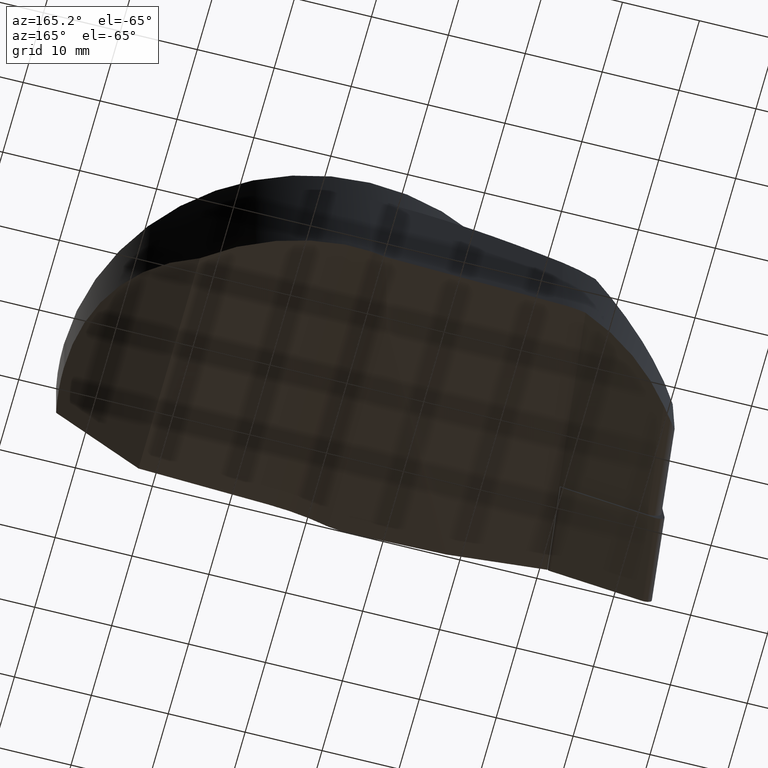
[diagram: clean part render]
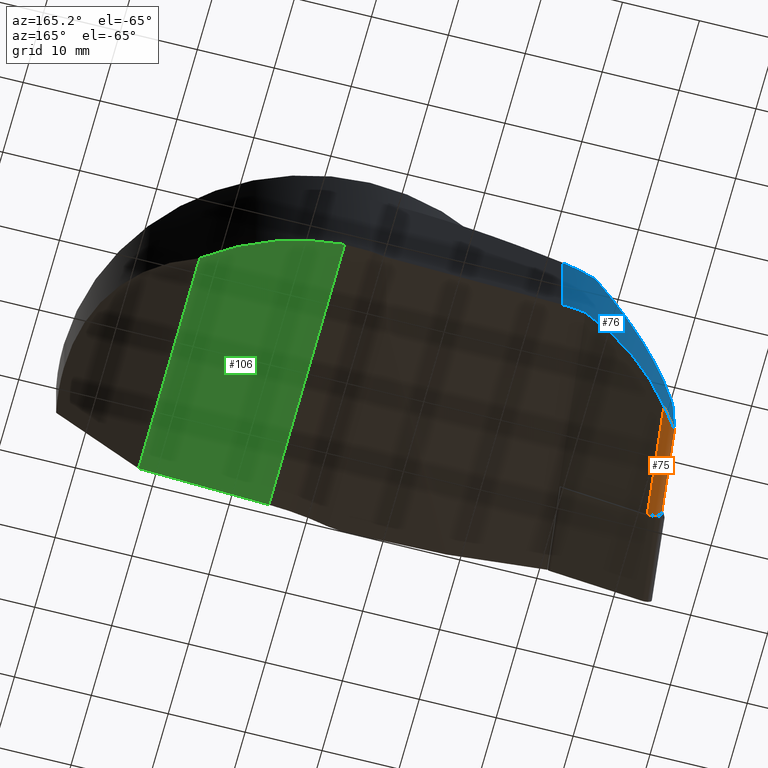
[diagram: same view with three faces highlighted in distinct colors, each labeled with its STEP entity id]
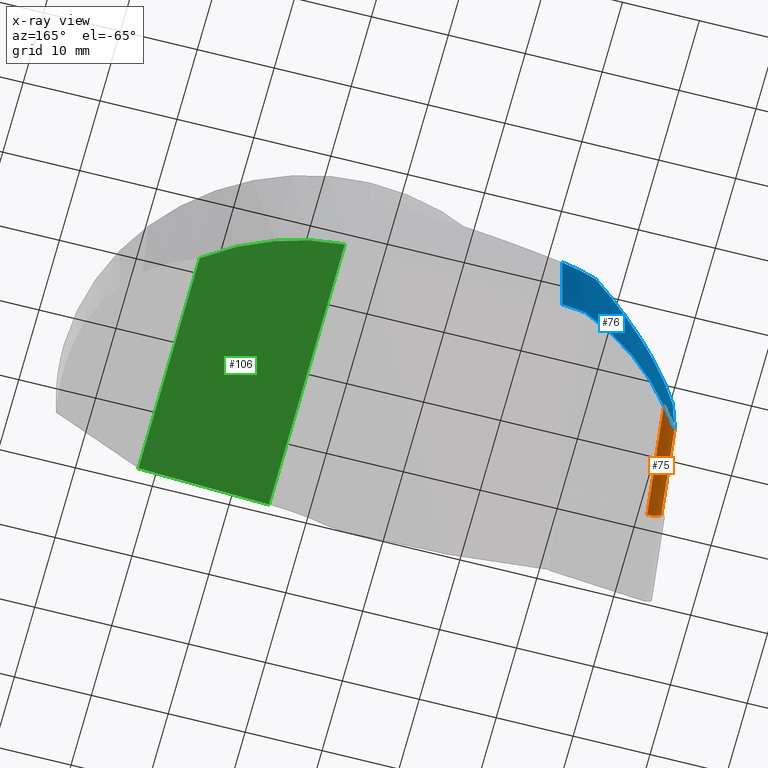
[diagram: x-ray of the same camera — body ghosted, the three highlighted faces saturated]
A machine part, auxiliary view with three faces highlighted in distinct colors.
The next image is the same camera in x-ray (body ghosted, the three faces saturated) — at least one of them is partly hidden behind the body in this view.
Their STEP definitions:

[orange] entity #75 — the highlighted cylindrical surface (edge-blend (fillet) strip) has radius 1.2 mm, axis along (-0.1115, -0.987, -0.1159).
#75=ADVANCED_FACE('',(#108),#109,.T.);
#108=FACE_OUTER_BOUND('',#172,.T.);
#109=CYLINDRICAL_SURFACE('',#173,1.2);
#172=EDGE_LOOP('',(#236,#237,#238,#239));
#173=AXIS2_PLACEMENT_3D('',#240,#241,#242);
#236=ORIENTED_EDGE('',*,*,#504,.F.);
#237=ORIENTED_EDGE('',*,*,#505,.T.);
#238=ORIENTED_EDGE('',*,*,#506,.T.);
#239=ORIENTED_EDGE('',*,*,#507,.F.);
#240=CARTESIAN_POINT('',(-42.2473332457357,10.3813485368924,-31.1449538277493));
#241=DIRECTION('',(-0.111468932180646,-0.986981129763168,-0.115943635659434));
#242=DIRECTION('',(0.992405994768391,-0.104449876167681,-0.0649658750138644));
#504=EDGE_CURVE('',#590,#591,#592,.T.);
#505=EDGE_CURVE('',#590,#593,#594,.T.);
#506=EDGE_CURVE('',#593,#595,#596,.T.);
#507=EDGE_CURVE('',#591,#595,#597,.T.);
#590=VERTEX_POINT('',#732);
#591=VERTEX_POINT('',#733);
#592=B_SPLINE_CURVE_WITH_KNOTS('',3,(#734,#735,#736,#737,#738,#739,#740,#741,#742,#743,#744,#745,#746,#747,#748),.UNSPECIFIED.,.F.,.F.,(4,2,2,2,2,3,4),(0.703840318712637,0.814147893085537,0.980479006784505,1.05301357881156,1.07338954938561,1.09376551995965,1.10189158686739),.UNSPECIFIED.);
#593=VERTEX_POINT('',#749);
#594=LINE('',#750,#751);
#595=VERTEX_POINT('',#752);
#596=CIRCLE('',#753,1.2);
#597=LINE('',#754,#755);
#732=CARTESIAN_POINT('',(-40.000534227406,24.7281507737258,-30.4842473547129));
#733=CARTESIAN_POINT('',(-42.1671648388261,21.7610160996156,-29.744915122449));
#734=CARTESIAN_POINT('',(-40.000534227406,24.7281507737258,-30.4842473547129));
#735=CARTESIAN_POINT('',(-40.2364859967363,24.4605848340567,-30.643268737101));
#736=CARTESIAN_POINT('',(-40.4992354616676,24.1454567910089,-30.7336546542653));
#737=CARTESIAN_POINT('',(-41.0662199484599,23.4239664420801,-30.8247704457174));
#738=CARTESIAN_POINT('',(-41.4521496613625,22.8842365567804,-30.7757139704795));
#739=CARTESIAN_POINT('',(-41.8636216677469,22.2550167066178,-30.5135350462382));
#740=CARTESIAN_POINT('',(-42.0019057681571,22.0338336008603,-30.3865084052233));
#741=CARTESIAN_POINT('',(-42.1101795704047,21.8558602884458,-30.1573414483801));
#742=CARTESIAN_POINT('',(-42.1324606231388,21.8188978904547,-30.0966646993533));
#743=CARTESIAN_POINT('',(-42.1626596152763,21.7685917047497,-29.9643598921968));
#744=CARTESIAN_POINT('',(-42.170353487876,21.7556794558618,-29.8925171401849));
#745=CARTESIAN_POINT('',(-42.170353487876,21.7556794558618,-29.8245972382714));
#746=CARTESIAN_POINT('',(-42.170353487876,21.7556794558618,-29.7975103485789));
#747=CARTESIAN_POINT('',(-42.169234747526,21.7575530445428,-29.7709668631283));
#748=CARTESIAN_POINT('',(-42.1671648388261,21.7610160996156,-29.744915122449));
#749=CARTESIAN_POINT('',(-41.6153931282609,10.4296800591149,-32.1639316252924));
#750=CARTESIAN_POINT('',(-41.6153931284297,10.4296800591077,-32.1639316250689));
#751=VECTOR('',#980,10.0);
#752=CARTESIAN_POINT('',(-43.4382204394578,10.5066883882936,-31.0669947777327));
#753=AXIS2_PLACEMENT_3D('',#981,#982,#983);
#754=CARTESIAN_POINT('',(-43.4090919079801,10.7646016053373,-31.0366969380191));
#755=VECTOR('',#984,10.0);
#980=DIRECTION('',(-0.111468932180646,-0.986981129763168,-0.115943635659434));
#981=CARTESIAN_POINT('',(-42.2473332457357,10.3813485368924,-31.1449538277493));
#982=DIRECTION('',(0.111468932180646,0.986981129763168,0.115943635659434));
#983=DIRECTION('',(0.992405994768391,-0.104449876167681,-0.0649658750138644));
#984=DIRECTION('',(-0.111468932207887,-0.986981129759563,-0.115943635663934));

[blue] entity #76 — the highlighted cylindrical surface (partial cylindrical patch) has radius 20 mm, axis along (-0, -0, -1).
#76=ADVANCED_FACE('',(#110),#111,.T.);
#110=FACE_OUTER_BOUND('',#174,.T.);
#111=CYLINDRICAL_SURFACE('',#175,20.0);
#174=EDGE_LOOP('',(#243,#244,#245,#246,#247,#248,#249));
#175=AXIS2_PLACEMENT_3D('',#250,#251,#252);
#243=ORIENTED_EDGE('',*,*,#504,.T.);
#244=ORIENTED_EDGE('',*,*,#508,.F.);
#245=ORIENTED_EDGE('',*,*,#509,.T.);
#246=ORIENTED_EDGE('',*,*,#510,.T.);
#247=ORIENTED_EDGE('',*,*,#511,.T.);
#248=ORIENTED_EDGE('',*,*,#512,.T.);
#249=ORIENTED_EDGE('',*,*,#513,.T.);
#250=CARTESIAN_POINT('',(-25.0,11.5,-27.1398531867254));
#251=DIRECTION('',(-0.0,-0.0,-1.0));
#252=DIRECTION('',(-0.868594311794104,-0.495523885921685,0.0));
#504=EDGE_CURVE('',#590,#591,#592,.T.);
#508=EDGE_CURVE('',#598,#591,#599,.T.);
#509=EDGE_CURVE('',#598,#600,#601,.T.);
#510=EDGE_CURVE('',#600,#602,#603,.T.);
#511=EDGE_CURVE('',#602,#604,#605,.T.);
#512=EDGE_CURVE('',#604,#606,#607,.T.);
#513=EDGE_CURVE('',#606,#590,#608,.T.);
#590=VERTEX_POINT('',#732);
#591=VERTEX_POINT('',#733);
#592=B_SPLINE_CURVE_WITH_KNOTS('',3,(#734,#735,#736,#737,#738,#739,#740,#741,#742,#743,#744,#745,#746,#747,#748),.UNSPECIFIED.,.F.,.F.,(4,2,2,2,2,3,4),(0.703840318712637,0.814147893085537,0.980479006784505,1.05301357881156,1.07338954938561,1.09376551995965,1.10189158686739),.UNSPECIFIED.);
#598=VERTEX_POINT('',#756);
#599=ELLIPSE('',#757,307.853930925469,20.0);
#600=VERTEX_POINT('',#758);
#601=B_SPLINE_CURVE_WITH_KNOTS('',3,(#759,#760,#761,#762,#763,#764,#765,#766,#767,#768,#769,#770,#771,#772,#773,#774),.UNSPECIFIED.,.F.,.F.,(4,2,2,2,2,2,2,4),(26.2664823185898,27.6243507450446,29.7536378607249,31.8829249764053,35.5950819891459,39.3072390018865,43.019396014627,45.5276441190841),.UNSPECIFIED.);
#602=VERTEX_POINT('',#775);
#603=B_SPLINE_CURVE_WITH_KNOTS('',3,(#776,#777,#778,#779,#780,#781),.UNSPECIFIED.,.F.,.F.,(4,2,4),(3.85715846001028,5.74178911328001,8.4775333503241),.UNSPECIFIED.);
#604=VERTEX_POINT('',#782);
#605=LINE('',#783,#784);
#606=VERTEX_POINT('',#785);
#607=ELLIPSE('',#786,20.1682327075782,20.0);
#608=ELLIPSE('',#787,23.5530156373906,20.0);
#732=CARTESIAN_POINT('',(-40.000534227406,24.7281507737258,-30.4842473547129));
#733=CARTESIAN_POINT('',(-42.1671648388261,21.7610160996156,-29.744915122449));
#734=CARTESIAN_POINT('',(-40.000534227406,24.7281507737258,-30.4842473547129));
#735=CARTESIAN_POINT('',(-40.2364859967363,24.4605848340567,-30.643268737101));
#736=CARTESIAN_POINT('',(-40.4992354616676,24.1454567910089,-30.7336546542653));
#737=CARTESIAN_POINT('',(-41.0662199484599,23.4239664420801,-30.8247704457174));
#738=CARTESIAN_POINT('',(-41.4521496613625,22.8842365567804,-30.7757139704795));
#739=CARTESIAN_POINT('',(-41.8636216677469,22.2550167066178,-30.5135350462382));
#740=CARTESIAN_POINT('',(-42.0019057681571,22.0338336008603,-30.3865084052233));
#741=CARTESIAN_POINT('',(-42.1101795704047,21.8558602884458,-30.1573414483801));
#742=CARTESIAN_POINT('',(-42.1324606231388,21.8188978904547,-30.0966646993533));
#743=CARTESIAN_POINT('',(-42.1626596152763,21.7685917047497,-29.9643598921968));
#744=CARTESIAN_POINT('',(-42.170353487876,21.7556794558618,-29.8925171401849));
#745=CARTESIAN_POINT('',(-42.170353487876,21.7556794558618,-29.8245972382714));
#746=CARTESIAN_POINT('',(-42.170353487876,21.7556794558618,-29.7975103485789));
#747=CARTESIAN_POINT('',(-42.169234747526,21.7575530445428,-29.7709668631283));
#748=CARTESIAN_POINT('',(-42.1671648388261,21.7610160996156,-29.744915122449));
#756=CARTESIAN_POINT('',(-41.7328957584472,22.4549166836429,-24.2267348735154));
#757=AXIS2_PLACEMENT_3D('',#985,#986,#987);
#758=CARTESIAN_POINT('',(-29.4512462150672,30.9983693454825,-11.5));
#759=CARTESIAN_POINT('',(-41.7328957584472,22.4549166836429,-24.2267348735154));
#760=CARTESIAN_POINT('',(-41.4774305124609,22.8451226025412,-24.1166245283476));
#761=CARTESIAN_POINT('',(-41.209476547354,23.2244122809021,-23.9809993746861));
#762=CARTESIAN_POINT('',(-40.4998929520124,24.1596671597686,-23.5748307826488));
#763=CARTESIAN_POINT('',(-40.0452306675594,24.6942809375487,-23.2706201639303));
#764=CARTESIAN_POINT('',(-39.1294086899895,25.6706677807837,-22.5874070547748));
#765=CARTESIAN_POINT('',(-38.6683116967142,26.1126169081332,-22.2085721524252));
#766=CARTESIAN_POINT('',(-37.4484016005857,27.1877367133264,-21.1374408521392));
#767=CARTESIAN_POINT('',(-36.6399120620046,27.7929350199541,-20.3491418322813));
#768=CARTESIAN_POINT('',(-35.0028898544862,28.8461661155331,-18.6155059005941));
#769=CARTESIAN_POINT('',(-34.1743983612639,29.2943106041819,-17.6701979705059));
#770=CARTESIAN_POINT('',(-32.5420781104469,30.0451915163858,-15.690207472594));
#771=CARTESIAN_POINT('',(-31.7380091014324,30.3481599014561,-14.6552419392213));
#772=CARTESIAN_POINT('',(-30.4446790255744,30.7523766728924,-12.907753267095));
#773=CARTESIAN_POINT('',(-29.937837116258,30.8872864200934,-12.1995750916439));
#774=CARTESIAN_POINT('',(-29.4512462150672,30.9983693454825,-11.5));
#775=CARTESIAN_POINT('',(-25.0,31.5,-10.0316346940355));
#776=CARTESIAN_POINT('',(-29.4512462150672,30.9983693454825,-11.5));
#777=CARTESIAN_POINT('',(-28.8547898446183,31.134533253057,-11.3198002116523));
#778=CARTESIAN_POINT('',(-28.2523575804097,31.2432334774766,-11.1313465735817));
#779=CARTESIAN_POINT('',(-26.7680451375148,31.441419094313,-10.6500527578228));
#780=CARTESIAN_POINT('',(-25.8826901717809,31.5,-10.3484448479002));
#781=CARTESIAN_POINT('',(-25.0,31.5,-10.0316346940355));
#782=CARTESIAN_POINT('',(-25.0,31.5,-22.5422430005462));
#783=CARTESIAN_POINT('',(-25.0,31.5,-10.0316346940355));
#784=VECTOR('',#988,13.0107804786045);
#785=CARTESIAN_POINT('',(-28.0838723174987,31.2608130280453,-22.784030277278));
#786=AXIS2_PLACEMENT_3D('',#989,#990,#991);
#787=AXIS2_PLACEMENT_3D('',#992,#993,#994);
#985=CARTESIAN_POINT('',(-25.0000000000001,11.4999999999999,248.994640923988));
#986=DIRECTION('',(-0.992405994765367,0.104449876194448,0.064965875017012));
#987=DIRECTION('',(-0.064609011250945,0.006800042786725,-0.997887486184326));
#988=DIRECTION('',(0.0,0.0,-1.0));
#989=CARTESIAN_POINT('',(-25.0,11.5,-24.7338029575812));
#990=DIRECTION('',(-0.0693217457636744,-0.108663956272754,0.991658530025043));
#991=DIRECTION('',(-0.533338465920051,-0.836024354275327,-0.128892823029719));
#992=CARTESIAN_POINT('',(-25.0,11.5,-21.8087858089168));
#993=DIRECTION('',(-0.526616764544056,-0.0402762685221387,0.849148164630345));
#994=DIRECTION('',(-0.846675516030683,-0.0647547376587921,-0.528154706979798));

[green] entity #106 — the highlighted planar face has unit normal (-0.0872, 0, 0.9962).
#106=ADVANCED_FACE('',(#170),#171,.F.);
#170=FACE_OUTER_BOUND('',#234,.T.);
#171=PLANE('',#235);
#234=EDGE_LOOP('',(#497,#498,#499,#500));
#235=AXIS2_PLACEMENT_3D('',#501,#502,#503);
#497=ORIENTED_EDGE('',*,*,#589,.T.);
#498=ORIENTED_EDGE('',*,*,#562,.F.);
#499=ORIENTED_EDGE('',*,*,#577,.F.);
#500=ORIENTED_EDGE('',*,*,#588,.F.);
#501=CARTESIAN_POINT('',(11.7318531802672,12.6655888746,-19.0346424113388));
#502=DIRECTION('',(-0.0871557427476571,0.0,0.996194698091746));
#503=DIRECTION('',(0.996194698091746,0.0,0.0871557427476571));
#562=EDGE_CURVE('',#687,#689,#690,.T.);
#577=EDGE_CURVE('',#712,#687,#714,.T.);
#588=EDGE_CURVE('',#728,#712,#730,.T.);
#589=EDGE_CURVE('',#728,#689,#731,.T.);
#687=VERTEX_POINT('',#906);
#689=VERTEX_POINT('',#915);
#690=LINE('',#916,#917);
#712=VERTEX_POINT('',#954);
#714=ELLIPSE('',#956,31.6203248826154,31.5);
#728=VERTEX_POINT('',#973);
#730=LINE('',#976,#977);
#731=LINE('',#978,#979);
#906=CARTESIAN_POINT('',(3.2568851450468,31.3311777492001,-19.7761060381651));
#915=CARTESIAN_POINT('',(3.2568851450468,-5.99999999999999,-19.7761060381651));
#916=CARTESIAN_POINT('',(3.2568851450468,31.3311777492001,-19.7761060381651));
#917=VECTOR('',#1071,37.3311777492001);
#954=CARTESIAN_POINT('',(20.2068212154876,24.164734146382,-18.2931787845124));
#956=AXIS2_PLACEMENT_3D('',#1099,#1100,#1101);
#973=CARTESIAN_POINT('',(20.2068212154876,-5.99999999999998,-18.2931787845124));
#976=CARTESIAN_POINT('',(20.2068212154876,-5.99999999999998,-18.2931787845124));
#977=VECTOR('',#1124,30.164734146382);
#978=CARTESIAN_POINT('',(20.2068212154876,-5.99999999999998,-18.2931787845124));
#979=VECTOR('',#1125,17.0146820726);
#1071=DIRECTION('',(0.0,-1.0,0.0));
#1099=CARTESIAN_POINT('',(0.0,-5.012655E-015,-20.0610465667627));
#1100=DIRECTION('',(-0.087155742747658,-3.882801E-017,0.996194698091746));
#1101=DIRECTION('',(0.996194698091746,1.41112E-016,0.087155742747658));
#1124=DIRECTION('',(0.0,1.0,0.0));
#1125=DIRECTION('',(-0.996194698091746,-6.52508827310403E-016,-0.087155742747657));